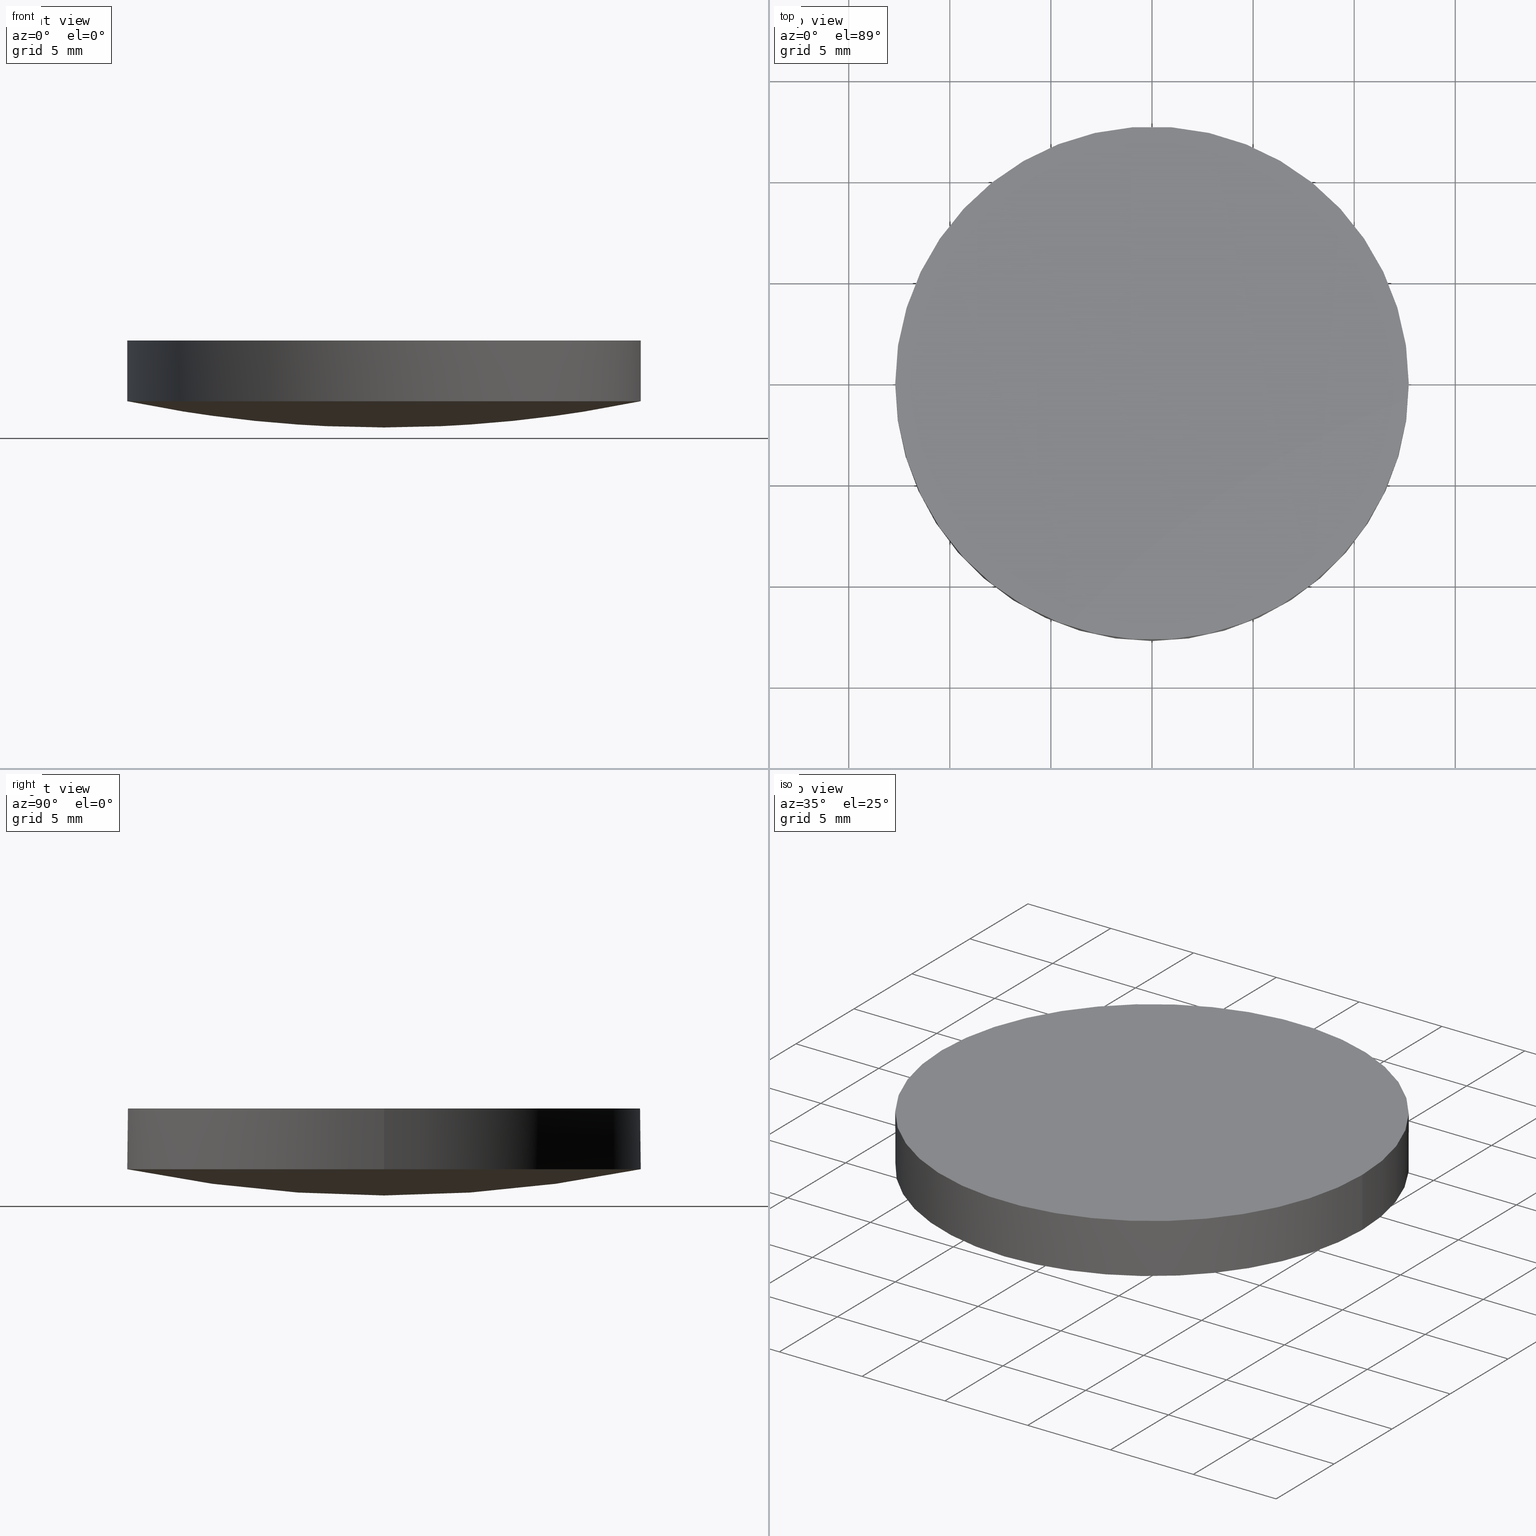
[diagram: canonical four-view strip — front | top / right | iso, engineering-drawing reading convention]
A machine part, canonical four-view strip (front | top / right | iso — engineering-drawing reading convention). The complete STEP part file that produces these views, byte-faithful:
ISO-10303-21;
HEADER;
FILE_DESCRIPTION (( 'STEP AP203' ),
    '1' );
FILE_NAME ('110-5217E CaF2 pl-cx 25.4 F150.STEP',
    '2019-01-03T07:10:50',
    ( '' ),
    ( '' ),
    'SwSTEP 2.0',
    'SolidWorks 2017',
    '' );
FILE_SCHEMA (( 'CONFIG_CONTROL_DESIGN' ));
ENDSEC;

DATA;
#1 = PRODUCT_DEFINITION ( 'UNKNOWN', '', #222, #30 ) ;
#2 = COORDINATED_UNIVERSAL_TIME_OFFSET ( 2, 0, .AHEAD. ) ;
#3 = CYLINDRICAL_SURFACE ( 'NONE', #51, 12.69999999999999900 ) ;
#4 = UNCERTAINTY_MEASURE_WITH_UNIT (LENGTH_MEASURE( 1.000000000000000100E-005 ), #164, 'distance_accuracy_value', 'NONE');
#5 = AXIS2_PLACEMENT_3D ( 'NONE', #138, #84, #34 ) ;
#6 = LINE ( 'NONE', #157, #125 ) ;
#7 = CARTESIAN_POINT ( 'NONE',  ( 12.86670321370419300, 4.344821375919631900, 0.8741130607796222500 ) ) ;
#8 = CARTESIAN_POINT ( 'NONE',  ( 8.630658128819243700, 4.344821375919631900, -0.006888369954442329100 ) ) ;
#9 = DATE_AND_TIME ( #67, #106 ) ;
#10 = PERSON_AND_ORGANIZATION ( #13, #235 ) ;
#11 = DIRECTION ( 'NONE',  ( 1.000000000000000000, 0.0000000000000000000, 0.0000000000000000000 ) ) ;
#12 = EDGE_CURVE ( 'NONE', #108, #137, #89, .T. ) ;
#13 = PERSON ( 'UNSPECIFIED', 'UNSPECIFIED', 'UNSPECIFIED', ('UNSPECIFIED'), ('UNSPECIFIED'), ('UNSPECIFIED') ) ;
#14 = CALENDAR_DATE ( 2019, 3, 1 ) ;
#15 = CARTESIAN_POINT ( 'NONE',  ( 4.996003610813200500E-016, 2.442490654175340100E-015, 1.298828136175660200 ) ) ;
#16 =( NAMED_UNIT ( * ) SI_UNIT ( $, .STERADIAN. ) SOLID_ANGLE_UNIT ( ) );
#17 = CARTESIAN_POINT ( 'NONE',  ( -8.673617379884035500E-015, 4.344821375919631900, -0.4497144982151724000 ) ) ;
#18 = APPROVAL_ROLE ( '' ) ;
#19 = CC_DESIGN_APPROVAL ( #33, ( #222 ) ) ;
#20 = CIRCLE ( 'NONE', #233, 12.69999999999999900 ) ;
#21 = APPLICATION_PROTOCOL_DEFINITION ( 'international standard', 'config_control_design', 1994, #165 ) ;
#22 = PERSON_AND_ORGANIZATION_ROLE ( 'classification_officer' ) ;
#23 = AXIS2_PLACEMENT_3D ( 'NONE', #85, #227, #211 ) ;
#24 = ORIENTED_EDGE ( 'NONE', *, *, #135, .F. ) ;
#25 = PERSON_AND_ORGANIZATION ( #13, #235 ) ;
#26 = AXIS2_PLACEMENT_3D ( 'NONE', #15, #88, #98 ) ;
#27 = ORIENTED_EDGE ( 'NONE', *, *, #39, .T. ) ;
#28 = CARTESIAN_POINT ( 'NONE',  ( 4.204824670683206200, -12.85024539458808100, 1.330075775174029300 ) ) ;
#29 = ADVANCED_FACE ( 'NONE', ( #171 ), #82, .T. ) ;
#30 = DESIGN_CONTEXT ( 'detailed design', #215, 'design' ) ;
#31 = PERSON_AND_ORGANIZATION ( #13, #235 ) ;
#32 = CARTESIAN_POINT ( 'NONE',  ( 4.204824670683206200, 12.85024539458807300, 1.330075775174029300 ) ) ;
#33 = APPROVAL ( #199, 'UNSPECIFIED' ) ;
#34 = DIRECTION ( 'NONE',  ( 1.000000000000000000, 0.0000000000000000000, -0.0000000000000000000 ) ) ;
#35 = CARTESIAN_POINT ( 'NONE',  ( 12.69999999999999900, 2.442490654175340100E-015, 1.298828136175660200 ) ) ;
#36 = CARTESIAN_POINT ( 'NONE',  ( -12.50430193665807500, 12.85024539458807500, 2.616616642309985300 ) ) ;
#37 = CARTESIAN_POINT ( 'NONE',  ( -4.204824670683225700, 12.85024539458807300, 1.330075775174026400 ) ) ;
#38 = APPLICATION_PROTOCOL_DEFINITION ( 'international standard', 'config_control_design', 1994, #215 ) ;
#39 = EDGE_CURVE ( 'NONE', #126, #99, #60, .T. ) ;
#40 = ORIENTED_EDGE ( 'NONE', *, *, #182, .T. ) ;
#41 =( BOUNDED_SURFACE ( )  B_SPLINE_SURFACE ( 3, 3, ( 
 ( #136, #118, #177, #70 ),
 ( #195, #219, #181, #91 ),
 ( #183, #90, #162, #17 ),
 ( #36, #124, #37, #78 ) ),
 .UNSPECIFIED., .F., .F., .F. ) 
 B_SPLINE_SURFACE_WITH_KNOTS ( ( 4, 4 ),
 ( 4, 4 ),
 ( 0.0000000000000000000, 1.000000000000000000 ),
 ( 0.0000000000000000000, 1.000000000000000000 ),
 .UNSPECIFIED. ) 
 GEOMETRIC_REPRESENTATION_ITEM ( )  RATIONAL_B_SPLINE_SURFACE ( (
 ( 1.000000000000000000, 0.9964991332635425600, 0.9964991332635425600, 1.000000000000000000),
 ( 0.9858667965659968500, 0.9824154082913211200, 0.9824154082913211200, 0.9858667965659968500),
 ( 0.9858667965659968500, 0.9824154082913211200, 0.9824154082913211200, 0.9858667965659968500),
 ( 1.000000000000000000, 0.9964991332635425600, 0.9964991332635425600, 1.000000000000000000) ) ) 
 REPRESENTATION_ITEM ( '' )  SURFACE ( )  );
#42 = CIRCLE ( 'NONE', #166, 12.69999999999999900 ) ;
#43 = EDGE_CURVE ( 'NONE', #76, #108, #42, .T. ) ;
#44 = CARTESIAN_POINT ( 'NONE',  ( 4.326689436755716000, -4.344821375919638100, -0.4497144982151697300 ) ) ;
#45 = AXIS2_PLACEMENT_3D ( 'NONE', #145, #218, #144 ) ;
#46 = CARTESIAN_POINT ( 'NONE',  ( 8.630658128819243700, -4.344821375919638100, -0.006888369954443414100 ) ) ;
#47 = ORIENTED_EDGE ( 'NONE', *, *, #114, .F. ) ;
#48 = CARTESIAN_POINT ( 'NONE',  ( -12.69999999999999900, 3.997792089092478900E-015, 4.299999999999999800 ) ) ;
#49 = LOCAL_TIME ( 9, 10, 50.00000000000000000, #107 ) ;
#50 = EDGE_LOOP ( 'NONE', ( #97, #141, #80, #129, #86 ) ) ;
#51 = AXIS2_PLACEMENT_3D ( 'NONE', #87, #71, #226 ) ;
#52 = CARTESIAN_POINT ( 'NONE',  ( 7.105427357601000300E-015, 0.0000000000000000000, 62.74000000000000200 ) ) ;
#53 = CARTESIAN_POINT ( 'NONE',  ( 12.69999999999999900, 2.442490654175340100E-015, 1.298828136175660200 ) ) ;
#54 = DATE_AND_TIME ( #14, #133 ) ;
#55 =( NAMED_UNIT ( * ) PLANE_ANGLE_UNIT ( ) SI_UNIT ( $, .RADIAN. ) );
#56 = AXIS2_PLACEMENT_3D ( 'NONE', #111, #65, #132 ) ;
#57 = PERSON_AND_ORGANIZATION ( #13, #235 ) ;
#58 = APPROVAL_STATUS ( 'not_yet_approved' ) ;
#59 = CC_DESIGN_PERSON_AND_ORGANIZATION_ASSIGNMENT ( #224, #74, ( #222 ) ) ;
#60 = CIRCLE ( 'NONE', #92, 12.69999999999999900 ) ;
#61 = CALENDAR_DATE ( 2019, 3, 1 ) ;
#62 =( GEOMETRIC_REPRESENTATION_CONTEXT ( 3 ) GLOBAL_UNCERTAINTY_ASSIGNED_CONTEXT ( ( #4 ) ) GLOBAL_UNIT_ASSIGNED_CONTEXT ( ( #164, #55, #16 ) ) REPRESENTATION_CONTEXT ( 'NONE', 'WORKASPACE' ) );
#63 = ADVANCED_FACE ( 'NONE', ( #204 ), #161, .T. ) ;
#64 = SHAPE_DEFINITION_REPRESENTATION ( #101, #79 ) ;
#65 = DIRECTION ( 'NONE',  ( -0.0000000000000000000, -0.0000000000000000000, -1.000000000000000000 ) ) ;
#66 = CARTESIAN_POINT ( 'NONE',  ( 8.387568545133055100, 12.85024539458807300, 1.760429341370824700 ) ) ;
#67 = CALENDAR_DATE ( 2019, 3, 1 ) ;
#68 = CARTESIAN_POINT ( 'NONE',  ( 7.105427357600998700E-015, -12.70000000000000300, 1.298828136175658200 ) ) ;
#69 = DIRECTION ( 'NONE',  ( 1.000000000000000000, 0.0000000000000000000, 0.0000000000000000000 ) ) ;
#70 = CARTESIAN_POINT ( 'NONE',  ( -8.673617379884035500E-015, -12.85024539458808200, 1.330075775174025500 ) ) ;
#71 = DIRECTION ( 'NONE',  ( 0.0000000000000000000, 0.0000000000000000000, 1.000000000000000000 ) ) ;
#72 = ORIENTED_EDGE ( 'NONE', *, *, #159, .T. ) ;
#73 = CARTESIAN_POINT ( 'NONE',  ( 4.996003610813200500E-016, 2.442490654175340100E-015, 4.299999999999999800 ) ) ;
#74 = PERSON_AND_ORGANIZATION_ROLE ( 'creator' ) ;
#75 = APPROVAL_PERSON_ORGANIZATION ( #169, #33, #18 ) ;
#76 = VERTEX_POINT ( 'NONE', #197 ) ;
#77 = PRODUCT_RELATED_PRODUCT_CATEGORY ( 'detail', '', ( #175 ) ) ;
#78 = CARTESIAN_POINT ( 'NONE',  ( -8.673617379884035500E-015, 12.85024539458807500, 1.330075775174025500 ) ) ;
#79 = ADVANCED_BREP_SHAPE_REPRESENTATION ( '110-5217E CaF2 pl-cx 25.4 F150', ( #188, #45 ), #62 ) ;
#80 = ORIENTED_EDGE ( 'NONE', *, *, #12, .F. ) ;
#81 = ORIENTED_EDGE ( 'NONE', *, *, #12, .T. ) ;
#82 =( BOUNDED_SURFACE ( )  B_SPLINE_SURFACE ( 3, 3, ( 
 ( #151, #28, #131, #154 ),
 ( #173, #44, #46, #207 ),
 ( #113, #152, #8, #7 ),
 ( #172, #32, #66, #223 ) ),
 .UNSPECIFIED., .F., .F., .F. ) 
 B_SPLINE_SURFACE_WITH_KNOTS ( ( 4, 4 ),
 ( 4, 4 ),
 ( 0.0000000000000000000, 1.000000000000000000 ),
 ( 0.0000000000000000000, 1.000000000000000000 ),
 .UNSPECIFIED. ) 
 GEOMETRIC_REPRESENTATION_ITEM ( )  RATIONAL_B_SPLINE_SURFACE ( (
 ( 1.000000000000000000, 0.9964991332635425600, 0.9964991332635425600, 1.000000000000000000),
 ( 0.9858667965659968500, 0.9824154082913211200, 0.9824154082913211200, 0.9858667965659968500),
 ( 0.9858667965659968500, 0.9824154082913211200, 0.9824154082913211200, 0.9858667965659968500),
 ( 1.000000000000000000, 0.9964991332635425600, 0.9964991332635425600, 1.000000000000000000) ) ) 
 REPRESENTATION_ITEM ( '' )  SURFACE ( )  );
#83 = CLOSED_SHELL ( 'NONE', ( #29, #163, #205, #105, #63 ) ) ;
#84 = DIRECTION ( 'NONE',  ( 0.0000000000000000000, 0.0000000000000000000, 1.000000000000000000 ) ) ;
#85 = CARTESIAN_POINT ( 'NONE',  ( 4.996003610813200500E-016, 2.442490654175340100E-015, 1.298828136175660200 ) ) ;
#86 = ORIENTED_EDGE ( 'NONE', *, *, #114, .T. ) ;
#87 = CARTESIAN_POINT ( 'NONE',  ( 4.996003610813200500E-016, 2.442490654175340100E-015, 1.298828136175660200 ) ) ;
#88 = DIRECTION ( 'NONE',  ( 0.0000000000000000000, 0.0000000000000000000, 1.000000000000000000 ) ) ;
#89 = CIRCLE ( 'NONE', #56, 12.69999999999999900 ) ;
#90 = CARTESIAN_POINT ( 'NONE',  ( -8.630658128819279200, 4.344821375919631900, -0.006888369954437667900 ) ) ;
#91 = CARTESIAN_POINT ( 'NONE',  ( -8.673617379884035500E-015, -4.344821375919638100, -0.4497144982151732300 ) ) ;
#92 = AXIS2_PLACEMENT_3D ( 'NONE', #73, #198, #116 ) ;
#93 = CYLINDRICAL_SURFACE ( 'NONE', #26, 12.69999999999999900 ) ;
#94 = CC_DESIGN_PERSON_AND_ORGANIZATION_ASSIGNMENT ( #57, #232, ( #222 ) ) ;
#95 = ORIENTED_EDGE ( 'NONE', *, *, #159, .F. ) ;
#96 = APPROVAL_PERSON_ORGANIZATION ( #25, #213, #179 ) ;
#97 = ORIENTED_EDGE ( 'NONE', *, *, #203, .F. ) ;
#98 = DIRECTION ( 'NONE',  ( 1.000000000000000000, 0.0000000000000000000, 0.0000000000000000000 ) ) ;
#99 = VERTEX_POINT ( 'NONE', #190 ) ;
#100 = DIRECTION ( 'NONE',  ( 1.000000000000000000, 0.0000000000000000000, 0.0000000000000000000 ) ) ;
#101 = PRODUCT_DEFINITION_SHAPE ( 'NONE', 'NONE',  #1 ) ;
#102 = DIRECTION ( 'NONE',  ( -0.0000000000000000000, -0.0000000000000000000, -1.000000000000000000 ) ) ;
#103 = FACE_OUTER_BOUND ( 'NONE', #147, .T. ) ;
#104 = MECHANICAL_CONTEXT ( 'NONE', #165, 'mechanical' ) ;
#105 = ADVANCED_FACE ( 'NONE', ( #230 ), #3, .T. ) ;
#106 = LOCAL_TIME ( 9, 10, 50.00000000000000000, #191 ) ;
#107 = COORDINATED_UNIVERSAL_TIME_OFFSET ( 2, 0, .AHEAD. ) ;
#108 = VERTEX_POINT ( 'NONE', #53 ) ;
#109 = COORDINATED_UNIVERSAL_TIME_OFFSET ( 2, 0, .AHEAD. ) ;
#110 = EDGE_LOOP ( 'NONE', ( #95, #40, #220 ) ) ;
#111 = CARTESIAN_POINT ( 'NONE',  ( 4.996003610813200500E-016, 2.442490654175340100E-015, 1.298828136175660200 ) ) ;
#112 = SECURITY_CLASSIFICATION ( '', '', #185 ) ;
#113 = CARTESIAN_POINT ( 'NONE',  ( 7.105427357600999500E-015, 4.344821375919631900, -0.4497144982151686800 ) ) ;
#114 = EDGE_CURVE ( 'NONE', #99, #126, #20, .T. ) ;
#115 = LOCAL_TIME ( 9, 10, 50.00000000000000000, #174 ) ;
#116 = DIRECTION ( 'NONE',  ( 1.000000000000000000, 0.0000000000000000000, 0.0000000000000000000 ) ) ;
#117 = CARTESIAN_POINT ( 'NONE',  ( 4.996003610813200500E-016, 2.442490654175340100E-015, 1.298828136175660200 ) ) ;
#118 = CARTESIAN_POINT ( 'NONE',  ( -8.387568545133094100, -12.85024539458808100, 1.760429341370829400 ) ) ;
#119 = PERSON_AND_ORGANIZATION ( #13, #235 ) ;
#120 = PERSON_AND_ORGANIZATION_ROLE ( 'design_owner' ) ;
#121 = PERSON_AND_ORGANIZATION_ROLE ( 'creator' ) ;
#122 = LOCAL_TIME ( 9, 10, 50.00000000000000000, #2 ) ;
#123 = ORIENTED_EDGE ( 'NONE', *, *, #39, .F. ) ;
#124 = CARTESIAN_POINT ( 'NONE',  ( -8.387568545133094100, 12.85024539458807300, 1.760429341370829400 ) ) ;
#125 = VECTOR ( 'NONE', #225, 1000.000000000000000 ) ;
#126 = VERTEX_POINT ( 'NONE', #48 ) ;
#127 = AXIS2_PLACEMENT_3D ( 'NONE', #117, #102, #69 ) ;
#128 = APPROVAL_DATE_TIME ( #9, #33 ) ;
#129 = ORIENTED_EDGE ( 'NONE', *, *, #149, .T. ) ;
#130 = CC_DESIGN_PERSON_AND_ORGANIZATION_ASSIGNMENT ( #119, #120, ( #175 ) ) ;
#131 = CARTESIAN_POINT ( 'NONE',  ( 8.387568545133055100, -12.85024539458808100, 1.760429341370824700 ) ) ;
#132 = DIRECTION ( 'NONE',  ( 1.000000000000000000, 0.0000000000000000000, 0.0000000000000000000 ) ) ;
#133 = LOCAL_TIME ( 9, 10, 50.00000000000000000, #109 ) ;
#134 = CARTESIAN_POINT ( 'NONE',  ( -12.69999999999999900, 3.997792089092478900E-015, 1.298828136175660200 ) ) ;
#135 = EDGE_CURVE ( 'NONE', #214, #76, #234, .T. ) ;
#136 = CARTESIAN_POINT ( 'NONE',  ( -12.50430193665807500, -12.85024539458808200, 2.616616642309985300 ) ) ;
#137 = VERTEX_POINT ( 'NONE', #68 ) ;
#138 = CARTESIAN_POINT ( 'NONE',  ( 0.0000000000000000000, 26.11199999999999800, 4.299999999999999800 ) ) ;
#139 = CARTESIAN_POINT ( 'NONE',  ( 4.996003610813200500E-016, 2.442490654175340100E-015, 1.298828136175660200 ) ) ;
#140 = CC_DESIGN_PERSON_AND_ORGANIZATION_ASSIGNMENT ( #31, #22, ( #112 ) ) ;
#141 = ORIENTED_EDGE ( 'NONE', *, *, #182, .F. ) ;
#142 = DATE_TIME_ROLE ( 'classification_date' ) ;
#143 = APPROVAL_STATUS ( 'not_yet_approved' ) ;
#144 = DIRECTION ( 'NONE',  ( 1.000000000000000000, 0.0000000000000000000, 0.0000000000000000000 ) ) ;
#145 = CARTESIAN_POINT ( 'NONE',  ( 0.0000000000000000000, 0.0000000000000000000, 0.0000000000000000000 ) ) ;
#146 = DATE_AND_TIME ( #61, #122 ) ;
#147 = EDGE_LOOP ( 'NONE', ( #24, #168, #27, #150, #153 ) ) ;
#148 = APPROVAL ( #143, 'UNSPECIFIED' ) ;
#149 = EDGE_CURVE ( 'NONE', #108, #99, #186, .T. ) ;
#150 = ORIENTED_EDGE ( 'NONE', *, *, #149, .F. ) ;
#151 = CARTESIAN_POINT ( 'NONE',  ( 7.105427357600998700E-015, -12.85024539458808200, 1.330075775174029100 ) ) ;
#152 = CARTESIAN_POINT ( 'NONE',  ( 4.326689436755716000, 4.344821375919631900, -0.4497144982151686800 ) ) ;
#153 = ORIENTED_EDGE ( 'NONE', *, *, #43, .F. ) ;
#154 = CARTESIAN_POINT ( 'NONE',  ( 12.50430193665802000, -12.85024539458808200, 2.616616642309972400 ) ) ;
#155 = DATE_AND_TIME ( #216, #49 ) ;
#156 = APPROVAL_DATE_TIME ( #54, #148 ) ;
#157 = CARTESIAN_POINT ( 'NONE',  ( -12.69999999999999900, 3.997792089092478900E-015, 1.298828136175660200 ) ) ;
#158 = DIRECTION ( 'NONE',  ( 0.0000000000000000000, 0.0000000000000000000, 1.000000000000000000 ) ) ;
#159 = EDGE_CURVE ( 'NONE', #137, #76, #192, .T. ) ;
#160 = CIRCLE ( 'NONE', #127, 12.69999999999999900 ) ;
#161 = PLANE ( 'NONE',  #5 ) ;
#162 = CARTESIAN_POINT ( 'NONE',  ( -4.326689436755732900, 4.344821375919631900, -0.4497144982151712300 ) ) ;
#163 = ADVANCED_FACE ( 'NONE', ( #103 ), #93, .T. ) ;
#164 =( LENGTH_UNIT ( ) NAMED_UNIT ( * ) SI_UNIT ( .MILLI., .METRE. ) );
#165 = APPLICATION_CONTEXT ( 'configuration controlled 3d designs of mechanical parts and assemblies' ) ;
#166 = AXIS2_PLACEMENT_3D ( 'NONE', #139, #194, #228 ) ;
#167 = APPROVAL_PERSON_ORGANIZATION ( #10, #148, #200 ) ;
#168 = ORIENTED_EDGE ( 'NONE', *, *, #203, .T. ) ;
#169 = PERSON_AND_ORGANIZATION ( #13, #235 ) ;
#170 = CC_DESIGN_APPROVAL ( #148, ( #1 ) ) ;
#171 = FACE_OUTER_BOUND ( 'NONE', #212, .T. ) ;
#172 = CARTESIAN_POINT ( 'NONE',  ( 7.105427357600998700E-015, 12.85024539458807500, 1.330075775174029100 ) ) ;
#173 = CARTESIAN_POINT ( 'NONE',  ( 7.105427357600999500E-015, -4.344821375919638100, -0.4497144982151697300 ) ) ;
#174 = COORDINATED_UNIVERSAL_TIME_OFFSET ( 2, 0, .AHEAD. ) ;
#175 = PRODUCT ( '110-5217E CaF2 pl-cx 25.4 F150', '110-5217E CaF2 pl-cx 25.4 F150', '', ( #104 ) ) ;
#176 = DIRECTION ( 'NONE',  ( -0.0000000000000000000, -0.0000000000000000000, -1.000000000000000000 ) ) ;
#177 = CARTESIAN_POINT ( 'NONE',  ( -4.204824670683225700, -12.85024539458808100, 1.330075775174026400 ) ) ;
#178 = DIRECTION ( 'NONE',  ( 0.0000000000000000000, -1.000000000000000000, 0.0000000000000000000 ) ) ;
#179 = APPROVAL_ROLE ( '' ) ;
#180 = APPROVAL_DATE_TIME ( #209, #213 ) ;
#181 = CARTESIAN_POINT ( 'NONE',  ( -4.326689436755732900, -4.344821375919638100, -0.4497144982151722300 ) ) ;
#182 = EDGE_CURVE ( 'NONE', #137, #214, #160, .T. ) ;
#183 = CARTESIAN_POINT ( 'NONE',  ( -12.86670321370425000, 4.344821375919631900, 0.8741130607796351300 ) ) ;
#184 = CC_DESIGN_SECURITY_CLASSIFICATION ( #112, ( #222 ) ) ;
#185 = SECURITY_CLASSIFICATION_LEVEL ( 'unclassified' ) ;
#186 = LINE ( 'NONE', #35, #202 ) ;
#187 = CC_DESIGN_PERSON_AND_ORGANIZATION_ASSIGNMENT ( #189, #121, ( #1 ) ) ;
#188 = MANIFOLD_SOLID_BREP ( 'Imported1', #83 ) ;
#189 = PERSON_AND_ORGANIZATION ( #13, #235 ) ;
#190 = CARTESIAN_POINT ( 'NONE',  ( 12.69999999999999900, 2.442490654175340100E-015, 4.299999999999999800 ) ) ;
#191 = COORDINATED_UNIVERSAL_TIME_OFFSET ( 2, 0, .AHEAD. ) ;
#192 = CIRCLE ( 'NONE', #217, 62.74000000000000200 ) ;
#193 = CC_DESIGN_DATE_AND_TIME_ASSIGNMENT ( #146, #142, ( #112 ) ) ;
#194 = DIRECTION ( 'NONE',  ( -0.0000000000000000000, -0.0000000000000000000, -1.000000000000000000 ) ) ;
#195 = CARTESIAN_POINT ( 'NONE',  ( -12.86670321370425000, -4.344821375919638100, 0.8741130607796339100 ) ) ;
#196 = CC_DESIGN_DATE_AND_TIME_ASSIGNMENT ( #155, #229, ( #1 ) ) ;
#197 = CARTESIAN_POINT ( 'NONE',  ( 7.105427357600998700E-015, 12.70000000000000300, 1.298828136175658200 ) ) ;
#198 = DIRECTION ( 'NONE',  ( -0.0000000000000000000, -0.0000000000000000000, -1.000000000000000000 ) ) ;
#199 = APPROVAL_STATUS ( 'not_yet_approved' ) ;
#200 = APPROVAL_ROLE ( '' ) ;
#201 = EDGE_LOOP ( 'NONE', ( #47, #123 ) ) ;
#202 = VECTOR ( 'NONE', #158, 1000.000000000000000 ) ;
#203 = EDGE_CURVE ( 'NONE', #214, #126, #6, .T. ) ;
#204 = FACE_OUTER_BOUND ( 'NONE', #201, .T. ) ;
#205 = ADVANCED_FACE ( 'NONE', ( #206 ), #41, .T. ) ;
#206 = FACE_OUTER_BOUND ( 'NONE', #110, .T. ) ;
#207 = CARTESIAN_POINT ( 'NONE',  ( 12.86670321370419300, -4.344821375919638100, 0.8741130607796211400 ) ) ;
#208 = CC_DESIGN_APPROVAL ( #213, ( #112 ) ) ;
#209 = DATE_AND_TIME ( #231, #115 ) ;
#210 = CARTESIAN_POINT ( 'NONE',  ( 4.996003610813200500E-016, 2.442490654175340100E-015, 4.299999999999999800 ) ) ;
#211 = DIRECTION ( 'NONE',  ( 1.000000000000000000, 8.881784197001252300E-016, 0.0000000000000000000 ) ) ;
#212 = EDGE_LOOP ( 'NONE', ( #81, #72, #221 ) ) ;
#213 = APPROVAL ( #58, 'UNSPECIFIED' ) ;
#214 = VERTEX_POINT ( 'NONE', #134 ) ;
#215 = APPLICATION_CONTEXT ( 'configuration controlled 3d designs of mechanical parts and assemblies' ) ;
#216 = CALENDAR_DATE ( 2019, 3, 1 ) ;
#217 = AXIS2_PLACEMENT_3D ( 'NONE', #52, #11, #178 ) ;
#218 = DIRECTION ( 'NONE',  ( 0.0000000000000000000, 0.0000000000000000000, 1.000000000000000000 ) ) ;
#219 = CARTESIAN_POINT ( 'NONE',  ( -8.630658128819279200, -4.344821375919638100, -0.006888369954438752900 ) ) ;
#220 = ORIENTED_EDGE ( 'NONE', *, *, #135, .T. ) ;
#221 = ORIENTED_EDGE ( 'NONE', *, *, #43, .T. ) ;
#222 = PRODUCT_DEFINITION_FORMATION_WITH_SPECIFIED_SOURCE ( 'ANY', '', #175, .NOT_KNOWN. ) ;
#223 = CARTESIAN_POINT ( 'NONE',  ( 12.50430193665802000, 12.85024539458807500, 2.616616642309972400 ) ) ;
#224 = PERSON_AND_ORGANIZATION ( #13, #235 ) ;
#225 = DIRECTION ( 'NONE',  ( 0.0000000000000000000, 0.0000000000000000000, 1.000000000000000000 ) ) ;
#226 = DIRECTION ( 'NONE',  ( 1.000000000000000000, 0.0000000000000000000, 0.0000000000000000000 ) ) ;
#227 = DIRECTION ( 'NONE',  ( -0.0000000000000000000, -0.0000000000000000000, -1.000000000000000000 ) ) ;
#228 = DIRECTION ( 'NONE',  ( 1.000000000000000000, -1.776356839400250500E-015, 0.0000000000000000000 ) ) ;
#229 = DATE_TIME_ROLE ( 'creation_date' ) ;
#230 = FACE_OUTER_BOUND ( 'NONE', #50, .T. ) ;
#231 = CALENDAR_DATE ( 2019, 3, 1 ) ;
#232 = PERSON_AND_ORGANIZATION_ROLE ( 'design_supplier' ) ;
#233 = AXIS2_PLACEMENT_3D ( 'NONE', #210, #176, #100 ) ;
#234 = CIRCLE ( 'NONE', #23, 12.69999999999999900 ) ;
#235 = ORGANIZATION ( 'UNSPECIFIED', 'UNSPECIFIED', '' ) ;
ENDSEC;
END-ISO-10303-21;
